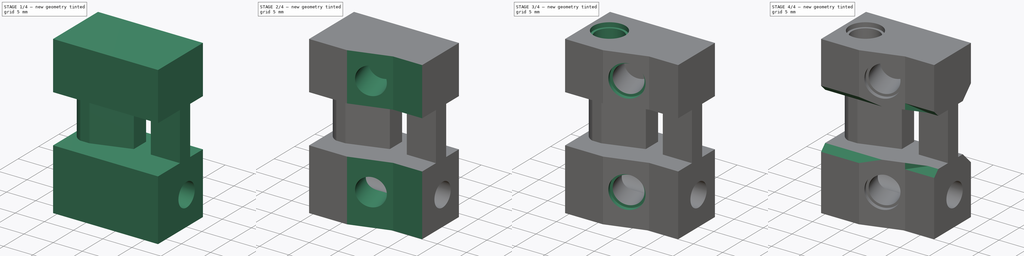
[diagram: build sequence overview — one tinted view per stage of 4, left to right]
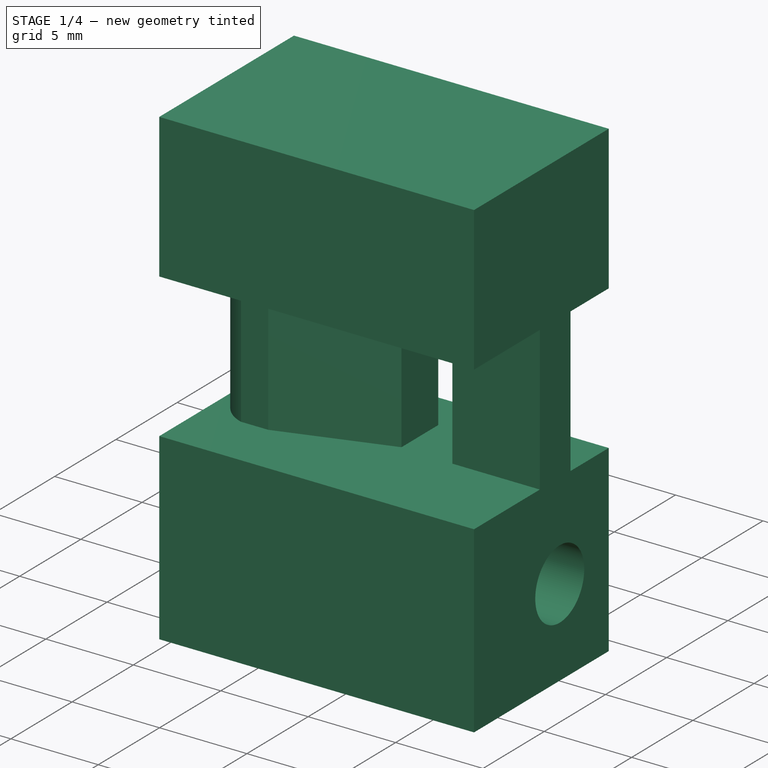
[diagram: stage 1 of 4 — iso view after this stage's code; geometry added in this stage tinted green]
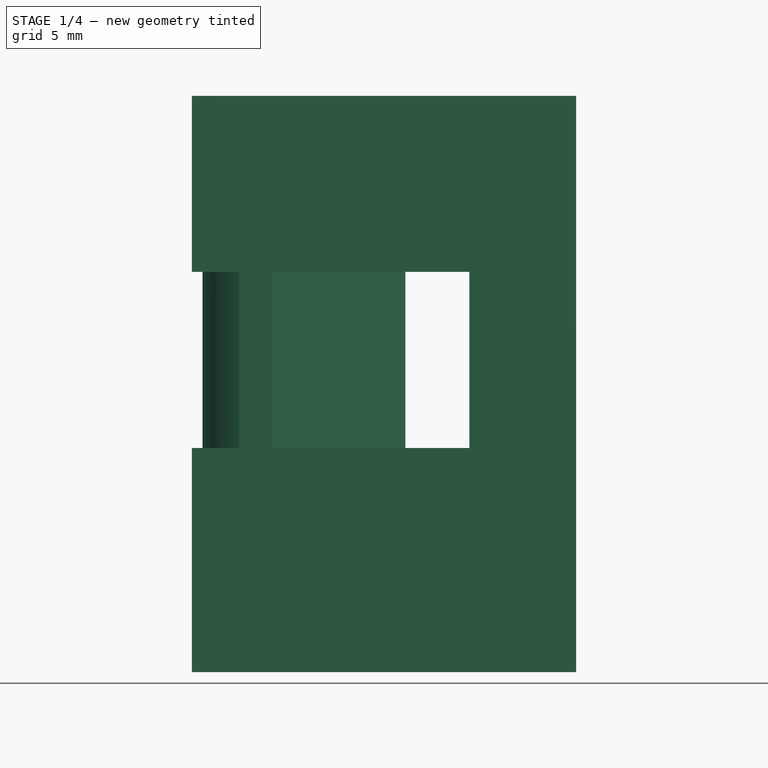
[diagram: stage 1 of 4 — front view after this stage's code; geometry added in this stage tinted green]
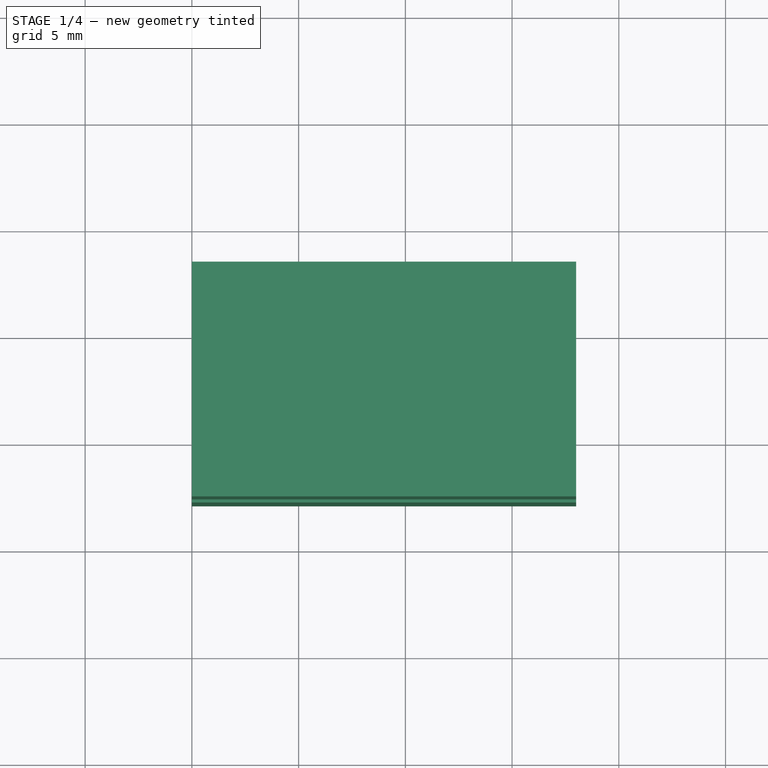
[diagram: stage 1 of 4 — top view after this stage's code; geometry added in this stage tinted green]
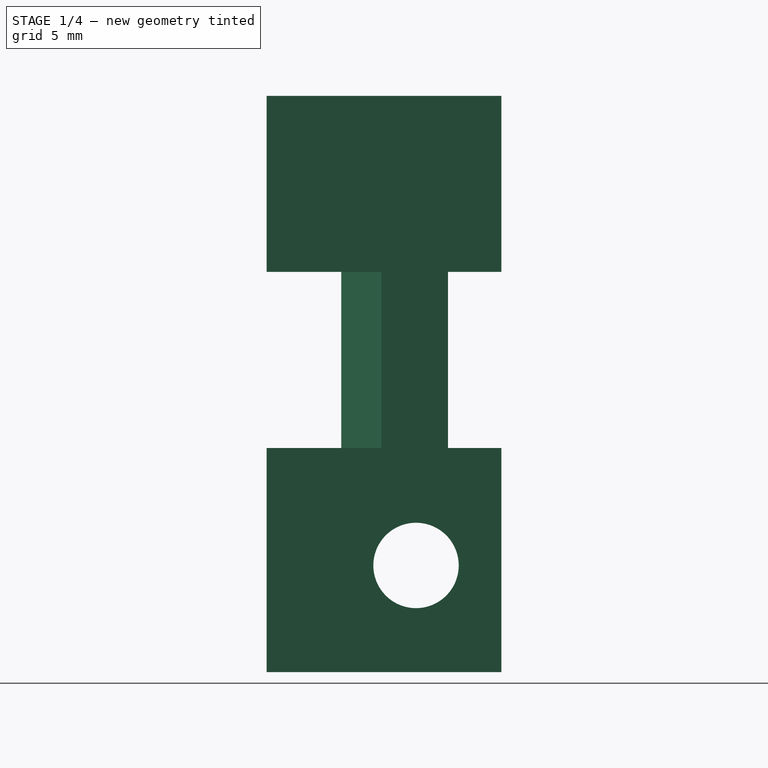
[diagram: stage 1 of 4 — right view after this stage's code; geometry added in this stage tinted green]
FCSTD DOCUMENT  (FreeCAD 0.18R4 (GitTag))
Label: x_belt_tensioner_0.1
License: CreativeCommons Attribution-ShareAlike
LicenseURL: http://creativecommons.org/licenses/by-sa/4.0/
objects: Sketcher::SketchObject×7, PartDesign::Pocket×6, PartDesign::Chamfer×2, PartDesign::Pad×1, PartDesign::Body×1
note: 24 computed .brp shape members not serialized (recipe doc carries the construction recipe); baked Part::Feature solids carry a one-line shape summary decoded from their .brp

FEATURE [Sketcher::SketchObject] Sketch
  MapMode = 5
  Placement = pos=(0,0,0) rot=(0.57735,0.57735,0.57735;2.0944rad)
  Support = -> [YZ_Plane]
  sketch-geometry (13):
    g0: LineSegment StartX=2.125 StartY=0 StartZ=0 EndX=2.125 EndY=-8.25 EndZ=0
    g1: LineSegment StartX=2.125 StartY=-8.25 StartZ=0 EndX=5.625 EndY=-8.25 EndZ=0
    g2: LineSegment StartX=5.625 StartY=-8.25 StartZ=0 EndX=5.625 EndY=-16.5 EndZ=0
    g3: LineSegment StartX=5.625 StartY=-16.5 StartZ=0 EndX=2.125 EndY=-16.5 EndZ=0
    g4: LineSegment StartX=2.125 StartY=-16.5 StartZ=0 EndX=2.125 EndY=-27 EndZ=0
    g5: LineSegment StartX=2.125 StartY=-27 StartZ=0 EndX=13.125 EndY=-27 EndZ=0
    g6: LineSegment StartX=13.125 StartY=-27 StartZ=0 EndX=13.125 EndY=-16.5 EndZ=0
    g7: LineSegment StartX=13.125 StartY=-16.5 StartZ=0 EndX=10.625 EndY=-16.5 EndZ=0
    g8: LineSegment StartX=10.625 StartY=-16.5 StartZ=0 EndX=10.625 EndY=-8.25 EndZ=0
    g9: LineSegment StartX=10.625 StartY=-8.25 StartZ=0 EndX=13.125 EndY=-8.25 EndZ=0
    g10: LineSegment StartX=13.125 StartY=-8.25 StartZ=0 EndX=13.125 EndY=0 EndZ=0
    g11: LineSegment StartX=13.125 StartY=0 StartZ=0 EndX=2.125 EndY=0 EndZ=0
    g12: Circle CenterX=9.125 CenterY=-22 CenterZ=0 NormalX=0 NormalY=0 NormalZ=1 AngleXU=0 Radius=2
  constraints (39):
    c: Coincident(g0,g1)
    c: Horizontal(g1)
    c: Coincident(g1,g2)
    c: Vertical(g2)
    c: Coincident(g2,g3)
    c: Horizontal(g3)
    c: Coincident(g3,g4)
    c: Vertical(g4)
    c: Coincident(g4,g5)
    c: Horizontal(g5)
    c: Coincident(g5,g6)
    c: Vertical(g6)
    c: Coincident(g6,g7)
    c: Horizontal(g7)
    c: Coincident(g7,g8)
    c: Vertical(g8)
    c: Coincident(g8,g9)
    c: Horizontal(g9)
    c: Coincident(g9,g10)
    c: PointOnObject(g10,g-1)
    c: Vertical(g10)
    c: Coincident(g10,g11)
    c: Coincident(g0,g11)
    c: Vertical(g0)
    c: DistanceY(g0,g0) = 8.25
    c: DistanceX(g1,g1) = 3.5
    c: DistanceX(g0) = 2.125
    c: DistanceX(g11,g11) = 11
    c: Equal(g10,g0)
    c: Equal(g2,g8)
    c: Equal(g6,g4)
    c: Equal(g3,g1)
    c: Equal(g7,g9)
    c: DistanceY(g2,g2) = 8.25
    c: DistanceY(g4,g4) = 10.5
    c: DistanceX(g9,g9) = 2.5
    c: DistanceY(g12) = -22
    c: DistanceX(g4,g12) = 7
    c: Radius(g12) = 2
FEATURE [PartDesign::Pad] Pad
  Length = 18
  Length2 = 100
  Placement = pos=(0,0,0) rot=(0.57735,0.57735,0.57735;2.0944rad)
  Profile = -> Sketch
  Refine = true
  Type = 0
FEATURE [Sketcher::SketchObject] Sketch001
  MapMode = 5
  Placement = pos=(3.2e-15,-4.6e-15,-8.25) rot=(0.707107,0.707107,0;3.14159rad)
  Support = -> [Pad]
  sketch-geometry (13):
    g0: LineSegment StartX=2.125 StartY=18 StartZ=0 EndX=7.5 EndY=18 EndZ=0
    g1: LineSegment StartX=7.5 StartY=18 StartZ=0 EndX=7.5 EndY=13 EndZ=0
    g2: LineSegment StartX=7.5 StartY=13 StartZ=0 EndX=10 EndY=13 EndZ=0
    g3: LineSegment StartX=10 StartY=13 StartZ=0 EndX=10 EndY=18 EndZ=0
    g4: LineSegment StartX=10 StartY=18 StartZ=0 EndX=10.625 EndY=18 EndZ=0
    g5: LineSegment StartX=10.625 StartY=18 StartZ=0 EndX=10.625 EndY=10 EndZ=0
    g6: LineSegment StartX=10.625 StartY=10 StartZ=0 EndX=7.625 EndY=10 EndZ=0
    g7: LineSegment StartX=7.625 StartY=10 StartZ=0 EndX=5.62004 EndY=3.76536 EndZ=0
    g8: LineSegment StartX=10.625 StartY=4 StartZ=0 EndX=10.625 EndY=0 EndZ=0
    g9: LineSegment StartX=10.625 StartY=0 StartZ=0 EndX=2.125 EndY=0 EndZ=0
    g10: LineSegment StartX=2.125 StartY=0 StartZ=0 EndX=2.125 EndY=18 EndZ=0
    g11: ArcOfCircle CenterX=8 CenterY=3 CenterZ=0 NormalX=0 NormalY=0 NormalZ=1 AngleXU=0 Radius=2.5 StartAngle=2.83045 EndAngle=6.17369
    g12: LineSegment StartX=10.485 StartY=2.7268 StartZ=0 EndX=10.625 EndY=4 EndZ=0
  constraints (38):
    c: Horizontal(g0)
    c: Coincident(g0,g1)
    c: Vertical(g1)
    c: Coincident(g1,g2)
    c: Horizontal(g2)
    c: Coincident(g2,g3)
    c: Vertical(g3)
    c: Coincident(g3,g4)
    c: Horizontal(g4)
    c: Coincident(g4,g5)
    c: Vertical(g5)
    c: Coincident(g5,g6)
    c: Horizontal(g6)
    c: Coincident(g6,g7)
    c: Vertical(g8)
    c: Coincident(g8,g9)
    c: Horizontal(g9)
    c: Coincident(g9,g10)
    c: Vertical(g10)
    c: DistanceX(g10) = 2.125
    c: DistanceY(g10,g10) = 18
    c: PointOnObject(g3,g0)
    c: Coincident(g0,g10)
    c: PointOnObject(g9,g-1)
    c: DistanceX(g0,g0) = 5.375
    c: DistanceY(g1,g1) = 5
    c: DistanceX(g2,g2) = 2.5
    c: DistanceX(g4,g4) = 0.625
    c: DistanceY(g5,g5) = 8
    c: DistanceX(g6,g6) = 3
    c: DistanceX(g11) = 8
    c: DistanceY(g11) = 3
    c: Radius(g11) = 2.5
    c: Tangent(g11,g7) = -1.5708
    c: PointOnObject(g8,g5)
    c: Coincident(g8,g12)
    c: Tangent(g12,g11) = -1.5708
    c: DistanceY(g8,g8) = 4
FEATURE [PartDesign::Pocket] Pocket
  BaseFeature = -> Pad
  Length = 8.25
  Length2 = 100
  Placement = pos=(0,0,0) rot=(0.57735,0.57735,0.57735;2.0944rad)
  Profile = -> Sketch001
  Refine = true
  Reversed = true
  Type = 0
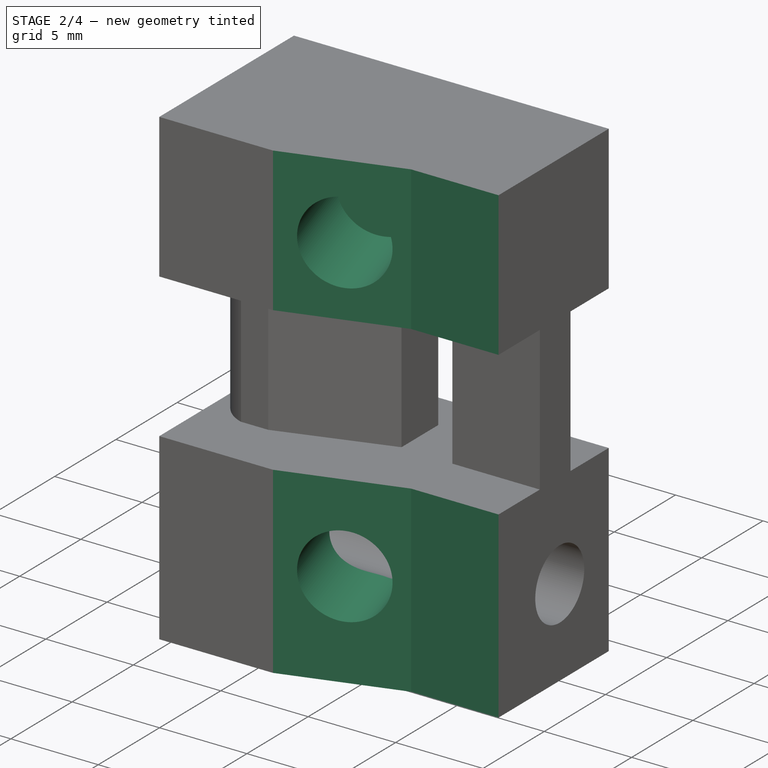
[diagram: stage 2 of 4 — iso view after this stage's code; geometry added in this stage tinted green]
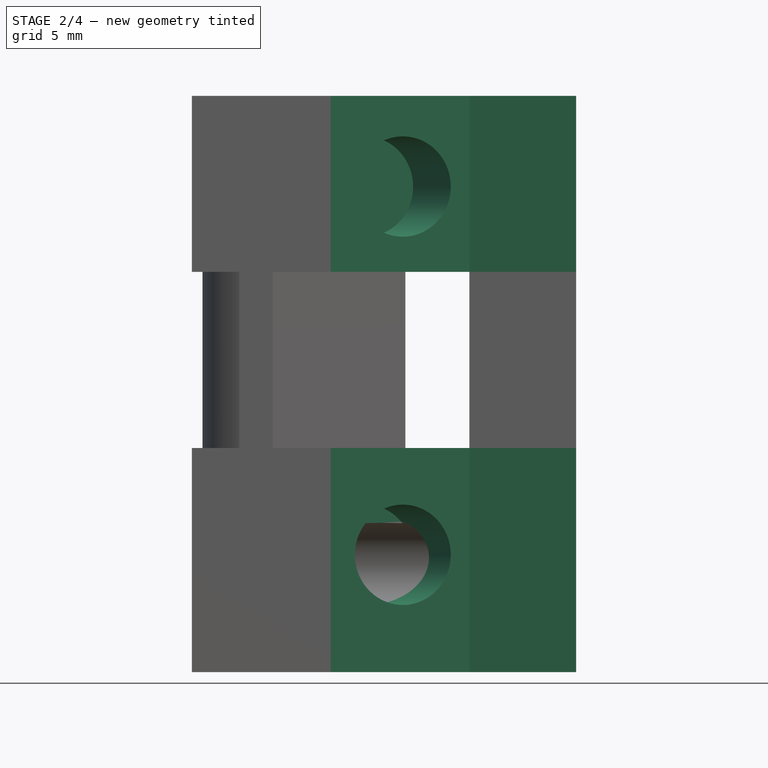
[diagram: stage 2 of 4 — front view after this stage's code; geometry added in this stage tinted green]
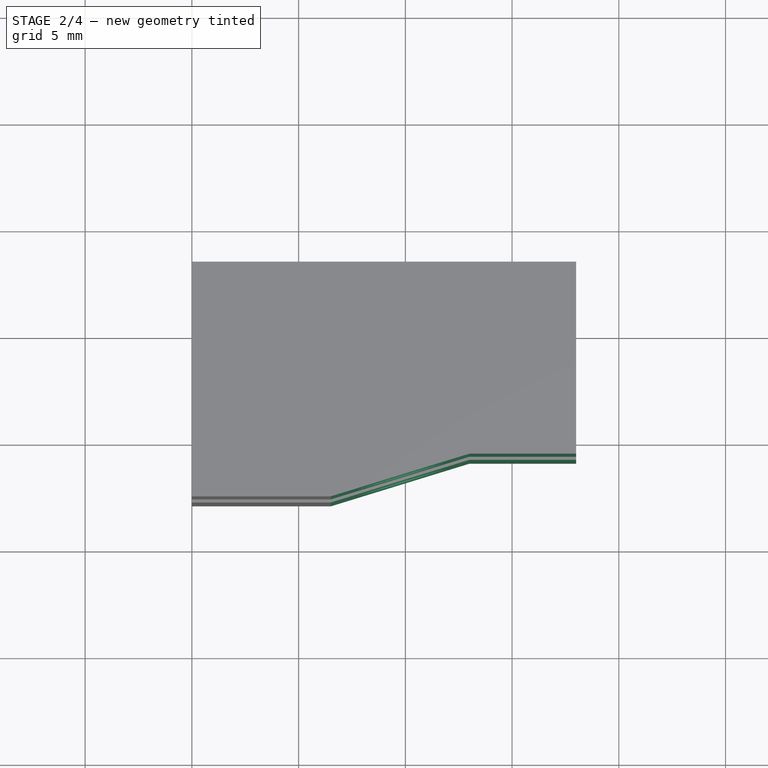
[diagram: stage 2 of 4 — top view after this stage's code; geometry added in this stage tinted green]
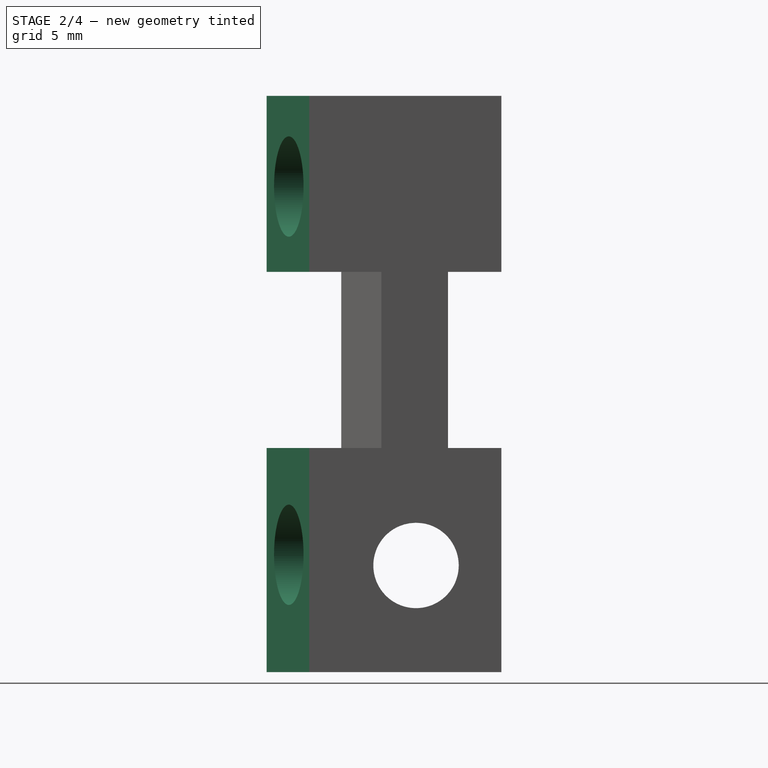
[diagram: stage 2 of 4 — right view after this stage's code; geometry added in this stage tinted green]
FEATURE [Sketcher::SketchObject] Sketch002
  MapMode = 5
  Placement = pos=(1.95e-14,-1.8e-14,-27) rot=(0.707107,0.707107,0;3.14159rad)
  Support = -> [Pocket]
  sketch-geometry (4):
    g0: LineSegment StartX=2.125 StartY=18 StartZ=0 EndX=4.125 EndY=18 EndZ=0
    g1: LineSegment StartX=4.125 StartY=18 StartZ=0 EndX=4.125 EndY=13 EndZ=0
    g2: LineSegment StartX=4.125 StartY=13 StartZ=0 EndX=2.125 EndY=6.5 EndZ=0
    g3: LineSegment StartX=2.125 StartY=6.5 StartZ=0 EndX=2.125 EndY=18 EndZ=0
  constraints (12):
    c: Horizontal(g0)
    c: Coincident(g0,g1)
    c: Vertical(g1)
    c: Coincident(g1,g2)
    c: Coincident(g2,g3)
    c: Coincident(g3,g0)
    c: Vertical(g3)
    c: DistanceX(g0) = 2.125
    c: DistanceY(g0) = 18
    c: DistanceX(g0,g0) = 2
    c: DistanceY(g1,g1) = 5
    c: DistanceY(g3,g3) = 11.5
FEATURE [PartDesign::Pocket] Pocket007002
  BaseFeature = -> Pocket
  Length = 5
  Length2 = 100
  Placement = pos=(0,0,0) rot=(0.57735,0.57735,0.57735;2.0944rad)
  Profile = -> Sketch002
  Refine = true
  Type = 1
FEATURE [Sketcher::SketchObject] Sketch003
  MapMode = 5
  Placement = pos=(-0.0351351,0.114189,-1e-16) rot=(0.510762,0.691552,-0.510762;1.93153rad)
  Support = -> [Pocket007002]
  sketch-geometry (3):
    g0: Circle CenterX=4.25 CenterY=10.375 CenterZ=0 NormalX=0 NormalY=0 NormalZ=1 AngleXU=0 Radius=2.35
    g1: Circle CenterX=21.5 CenterY=10.375 CenterZ=0 NormalX=0 NormalY=0 NormalZ=1 AngleXU=0 Radius=2.35
    g2: LineSegment [constr] StartX=4.25 StartY=10.375 StartZ=0 EndX=21.5 EndY=10.375 EndZ=0
  constraints (8):
    c: DistanceX(g1) = 21.5
    c: DistanceY(g1) = 10.375
    c: Radius(g1) = 2.35
    c: Coincident(g2,g0)
    c: Coincident(g2,g1)
    c: Horizontal(g2)
    c: DistanceX(g2,g2) = 17.25
    c: Equal(g0,g1)
FEATURE [PartDesign::Pocket] Pocket007003
  BaseFeature = -> Pocket007002
  Length = 6
  Length2 = 100
  Placement = pos=(0,0,0) rot=(0.57735,0.57735,0.57735;2.0944rad)
  Profile = -> Sketch003
  Refine = true
  Type = 0
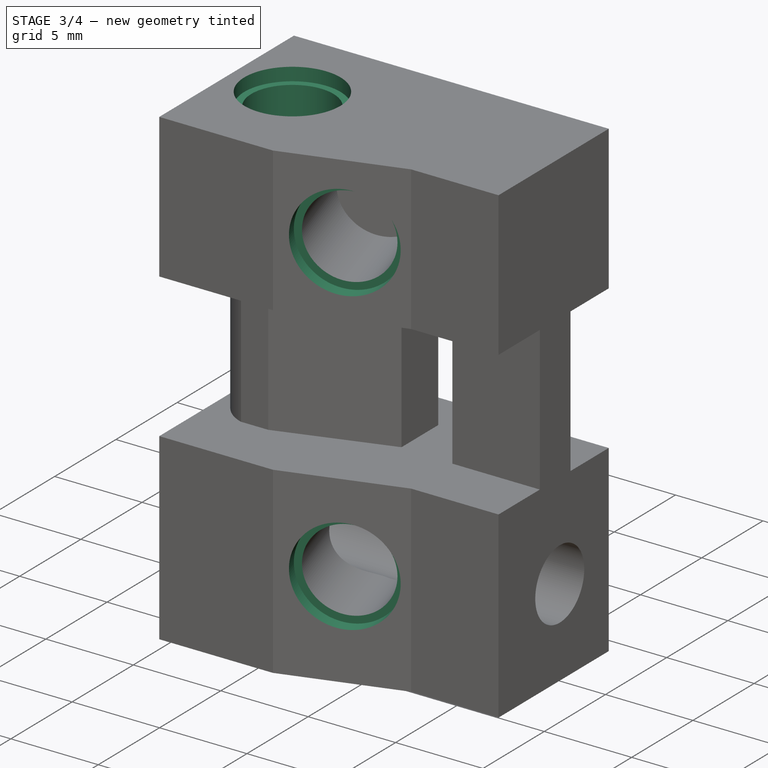
[diagram: stage 3 of 4 — iso view after this stage's code; geometry added in this stage tinted green]
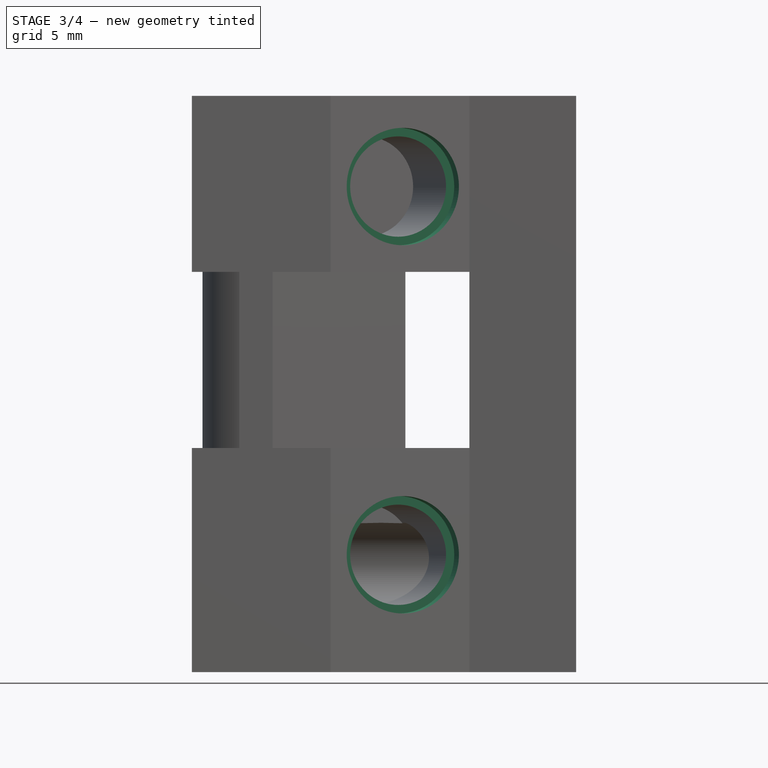
[diagram: stage 3 of 4 — front view after this stage's code; geometry added in this stage tinted green]
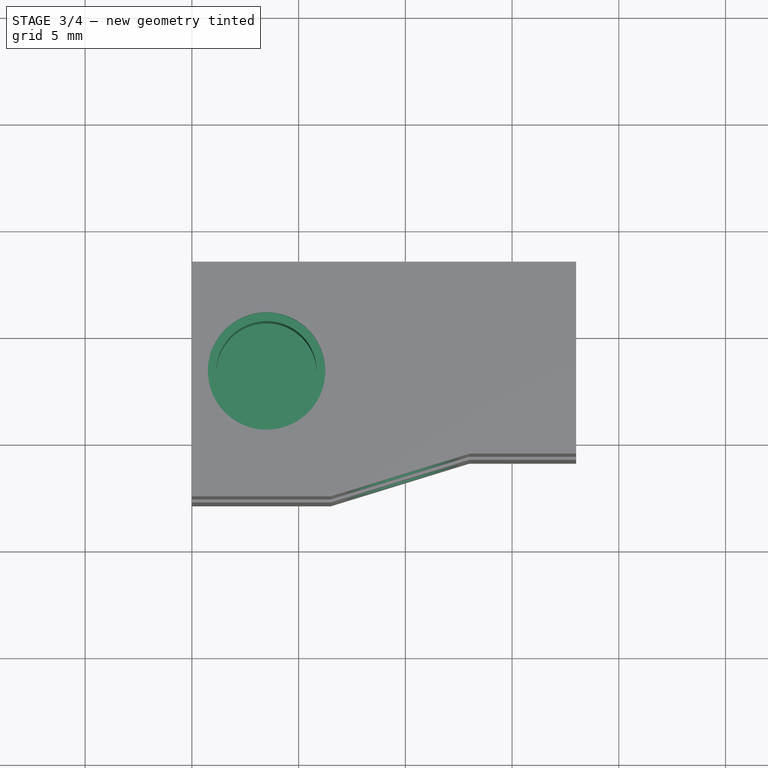
[diagram: stage 3 of 4 — top view after this stage's code; geometry added in this stage tinted green]
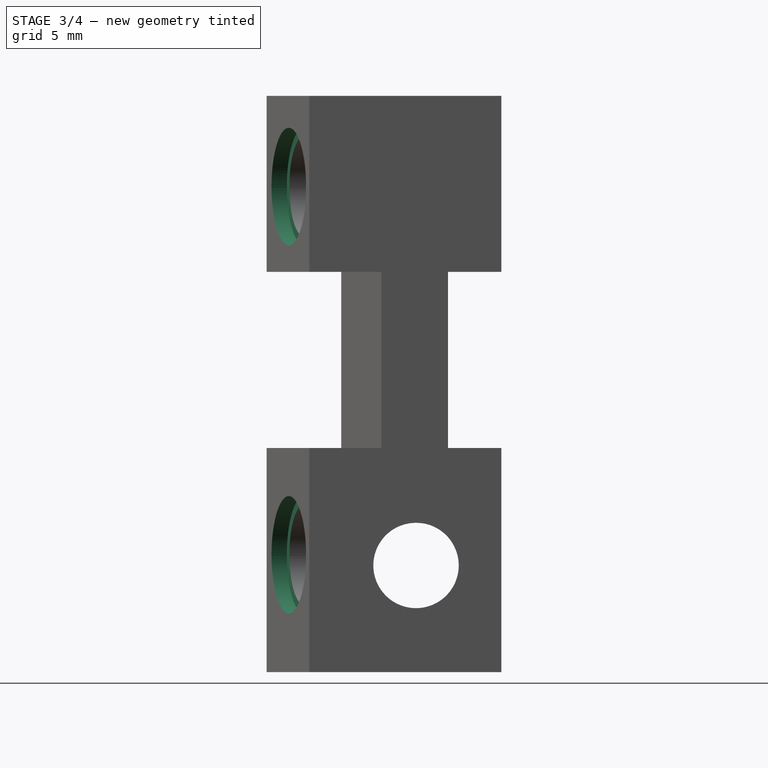
[diagram: stage 3 of 4 — right view after this stage's code; geometry added in this stage tinted green]
FEATURE [Sketcher::SketchObject] Sketch004
  MapMode = 5
  Placement = pos=(0,0,-8.7e-15) rot=(0,0,-1;1.5708rad)
  Support = -> [Pocket007003]
  sketch-geometry (1):
    g0: Circle CenterX=-8 CenterY=3.5 CenterZ=0 NormalX=0 NormalY=0 NormalZ=1 AngleXU=0 Radius=2.35
  constraints (3):
    c: Radius(g0) = 2.35
    c: DistanceX(g0) = -8
    c: DistanceY(g0) = 3.5
FEATURE [PartDesign::Pocket] Pocket007004
  BaseFeature = -> Pocket007003
  Length = 7
  Length2 = 100
  Placement = pos=(0,0,0) rot=(0.57735,0.57735,0.57735;2.0944rad)
  Profile = -> Sketch004
  Refine = true
  Type = 0
FEATURE [Sketcher::SketchObject] Sketch005
  ExternalGeometry = -> [Pocket007004]
  MapMode = 5
  Placement = pos=(0,0,-1.17e-14) rot=(0,0,-1;1.5708rad)
  Support = -> [Pocket007004]
  sketch-geometry (1):
    g0: Circle CenterX=-8 CenterY=3.5 CenterZ=0 NormalX=0 NormalY=0 NormalZ=1 AngleXU=0 Radius=2.75
  constraints (2):
    c: Coincident(g0,g-3)
    c: Radius(g0) = 2.75
FEATURE [PartDesign::Pocket] Pocket007005
  BaseFeature = -> Pocket007004
  Length = 0.75
  Length2 = 100
  Placement = pos=(0,0,0) rot=(0.57735,0.57735,0.57735;2.0944rad)
  Profile = -> Sketch005
  Refine = true
  Type = 0
FEATURE [Sketcher::SketchObject] Sketch006
  ExternalGeometry = -> [Pocket007005]
  MapMode = 5
  Placement = pos=(-0.0351351,0.114189,-3e-16) rot=(0.510762,0.691552,-0.510762;1.93153rad)
  Support = -> [Pocket007005]
  sketch-geometry (2):
    g0: Circle CenterX=21.5 CenterY=10.375 CenterZ=0 NormalX=0 NormalY=0 NormalZ=1 AngleXU=0 Radius=2.75
    g1: Circle CenterX=4.25 CenterY=10.375 CenterZ=0 NormalX=0 NormalY=0 NormalZ=1 AngleXU=0 Radius=2.75
  constraints (4):
    c: Coincident(g0,g-3)
    c: Coincident(g1,g-4)
    c: Equal(g1,g0)
    c: Radius(g0) = 2.75
FEATURE [PartDesign::Pocket] Pocket007006
  BaseFeature = -> Pocket007005
  Length = 0.75
  Length2 = 100
  Placement = pos=(0,0,0) rot=(0.57735,0.57735,0.57735;2.0944rad)
  Profile = -> Sketch006
  Refine = true
  Type = 0
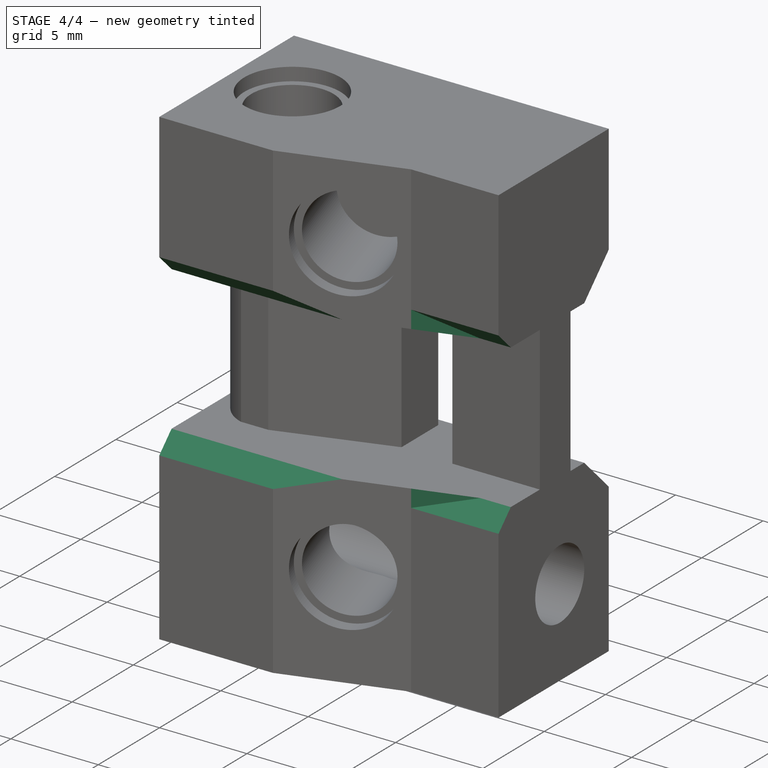
[diagram: stage 4 of 4 — iso view after this stage's code; geometry added in this stage tinted green]
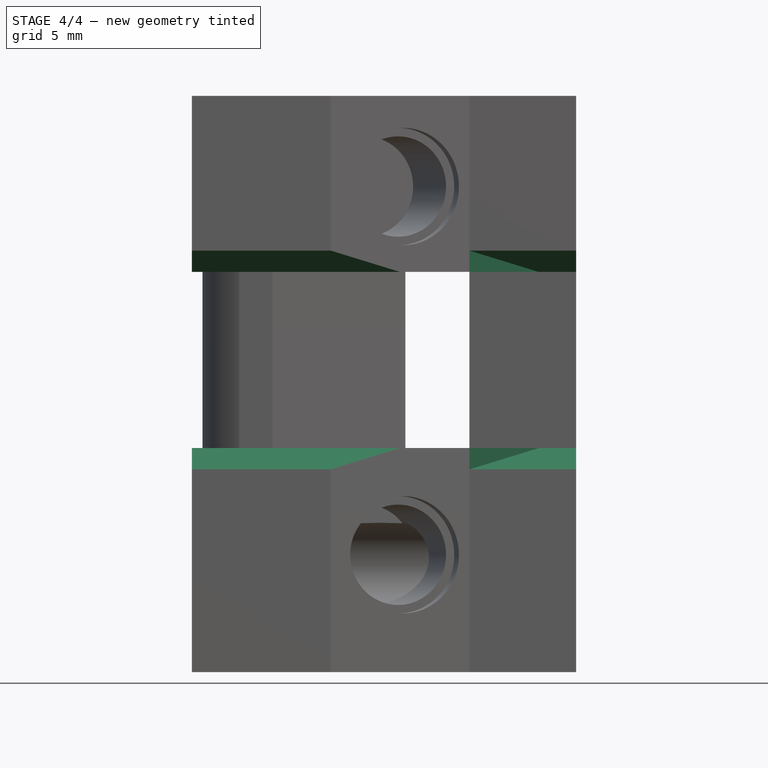
[diagram: stage 4 of 4 — front view after this stage's code; geometry added in this stage tinted green]
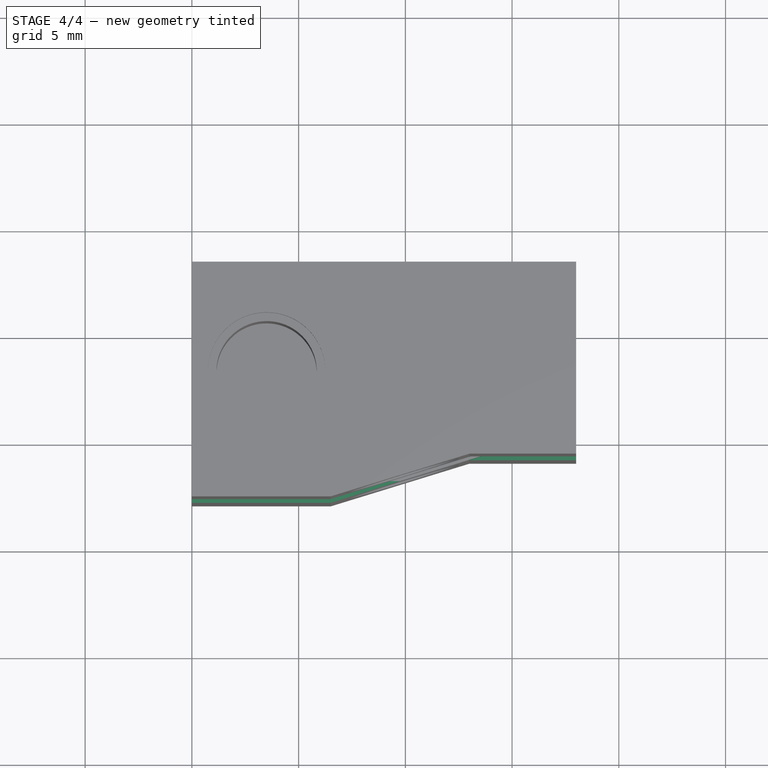
[diagram: stage 4 of 4 — top view after this stage's code; geometry added in this stage tinted green]
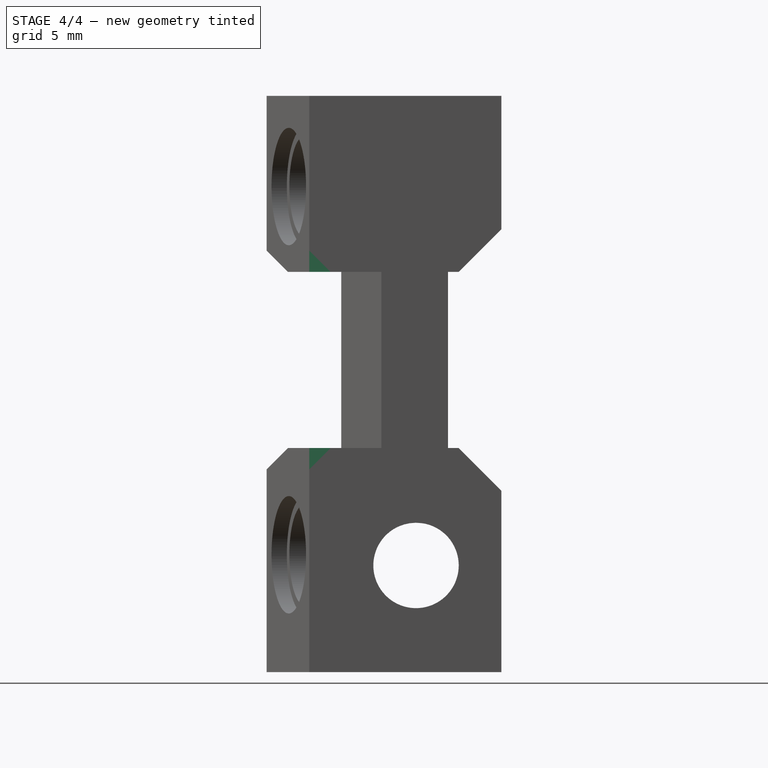
[diagram: stage 4 of 4 — right view after this stage's code; geometry added in this stage tinted green]
FEATURE [PartDesign::Chamfer] Chamfer
  Base = -> Pocket007006 [Edge62,Edge2,Edge9,Edge60]
  BaseFeature = -> Pocket007006
  Placement = pos=(0,0,0) rot=(0.57735,0.57735,0.57735;2.0944rad)
  Size = 1
FEATURE [PartDesign::Chamfer] Chamfer001
  Base = -> Chamfer [Edge81,Edge22]
  BaseFeature = -> Chamfer
  Placement = pos=(0,0,0) rot=(0.57735,0.57735,0.57735;2.0944rad)
  Size = 2
FEATURE [PartDesign::Body] Body
  Group = -> [Sketch,Pad,Sketch001,Pocket,Sketch002,Pocket007002,Sketch003,Pocket007003,Sketch004,Pocket007004,Sketch005,Pocket007005,Sketch006,Pocket007006,Chamfer,Chamfer001]
  Origin = -> Origin
  Tip = -> Chamfer001
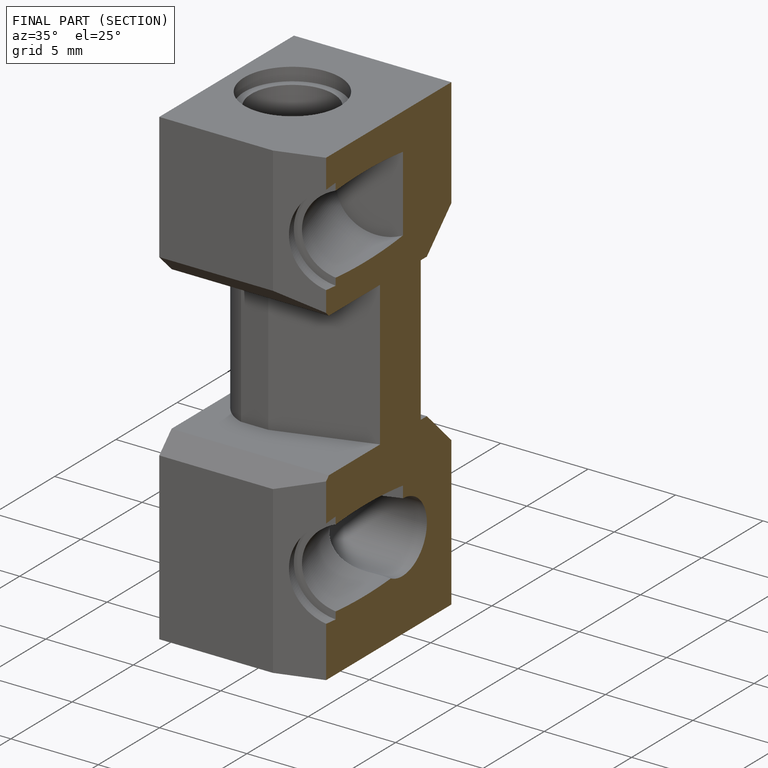
[diagram: finished part — half-section view (interior)]
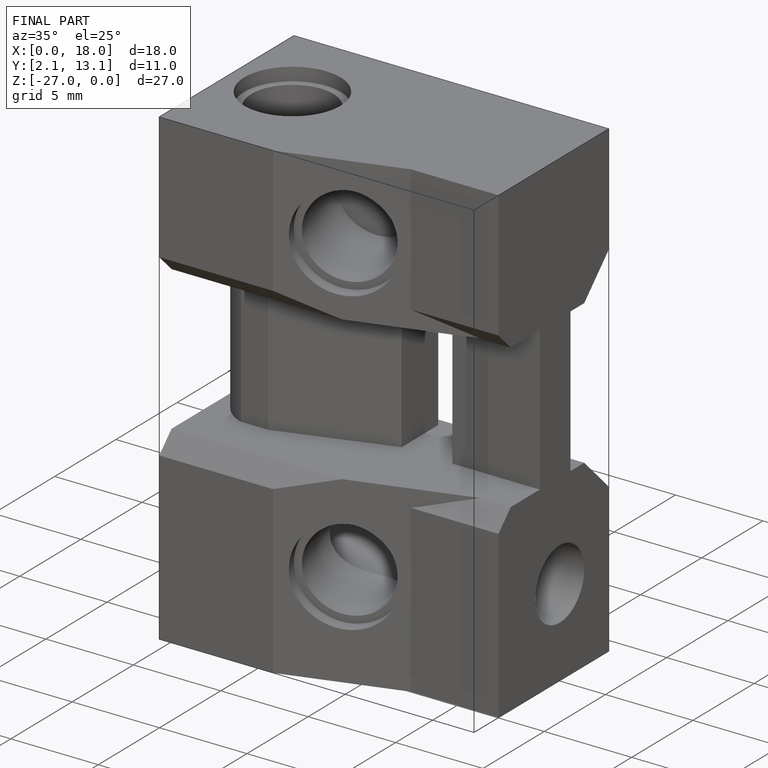
[diagram: finished part — iso view with bounding-box wireframe]
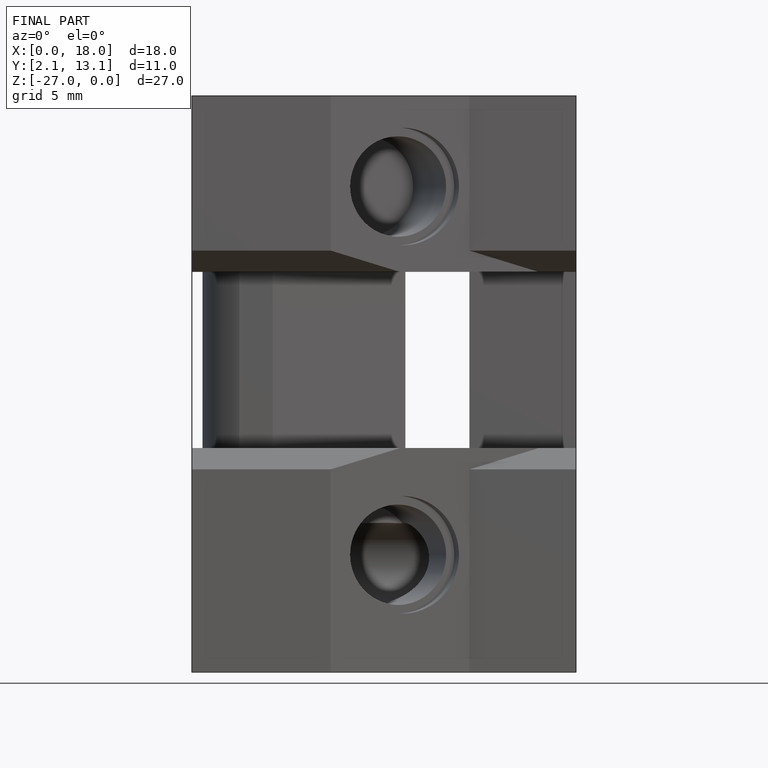
[diagram: finished part — front view with bounding-box wireframe]
